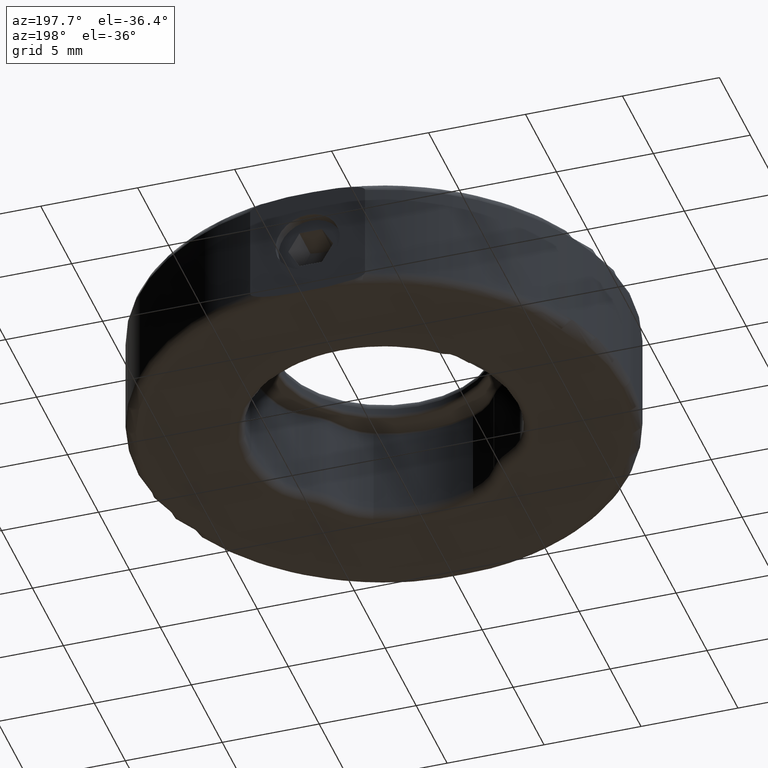
[diagram: clean part render]
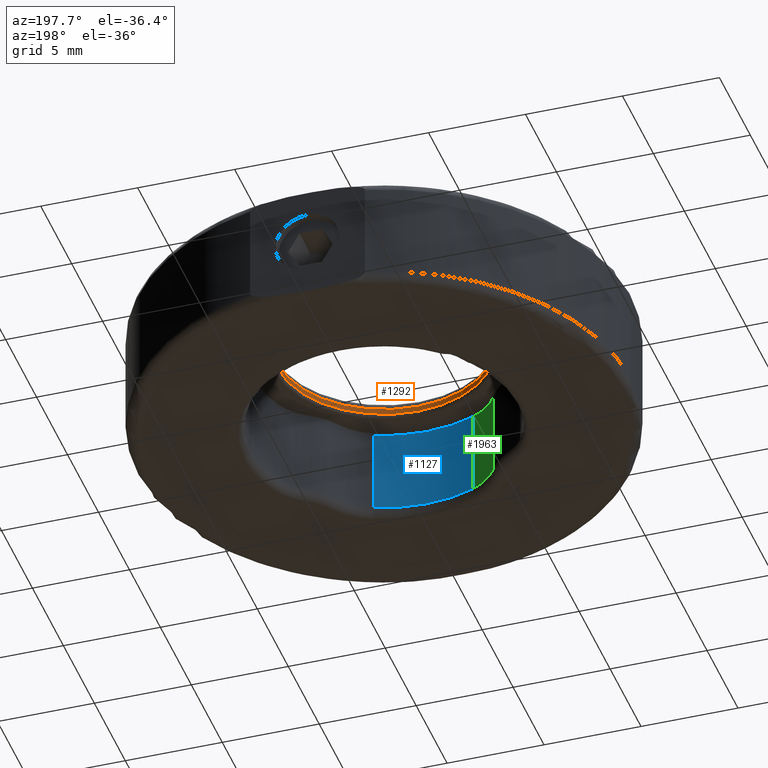
[diagram: same view with three faces highlighted in distinct colors, each labeled with its STEP entity id]
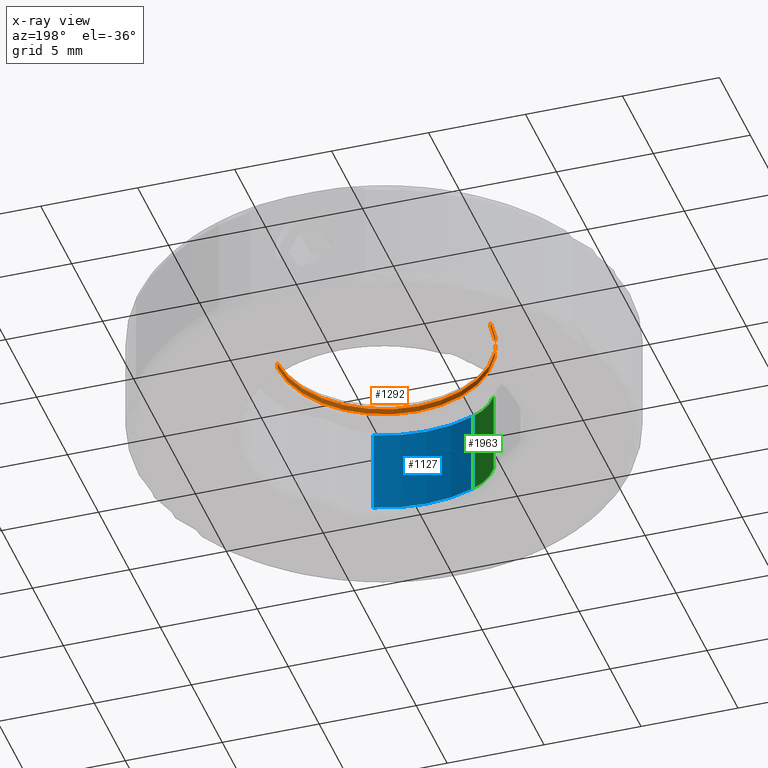
[diagram: x-ray of the same camera — body ghosted, the three highlighted faces saturated]
A machine part, auxiliary view with three faces highlighted in distinct colors.
The next image is the same camera in x-ray (body ghosted, the three faces saturated) — at least one of them is partly hidden behind the body in this view.
Their STEP definitions:

[orange] entity #1292 — the highlighted cylindrical surface (partial cylindrical patch) has radius 5.5 mm, axis along (-0, -0, -1).
#56 = ORIENTED_EDGE ( 'NONE', *, *, #1991, .T. ) ;
#67 = LINE ( 'NONE', #2198, #1425 ) ;
#168 = EDGE_CURVE ( 'NONE', #1728, #1677, #182, .T. ) ;
#182 = CIRCLE ( 'NONE', #799, 5.500000000000000000 ) ;
#232 = EDGE_CURVE ( 'NONE', #1728, #1734, #67, .T. ) ;
#272 = EDGE_CURVE ( 'NONE', #995, #1734, #2313, .T. ) ;
#286 = DIRECTION ( 'NONE',  ( -0.0000000000000000000, 0.0000000000000000000, 1.000000000000000000 ) ) ;
#338 = LINE ( 'NONE', #2300, #1823 ) ;
#382 = AXIS2_PLACEMENT_3D ( 'NONE', #517, #2360, #2207 ) ;
#479 = DIRECTION ( 'NONE',  ( 1.000000000000000000, 0.0000000000000000000, 0.0000000000000000000 ) ) ;
#504 = ORIENTED_EDGE ( 'NONE', *, *, #232, .F. ) ;
#517 = CARTESIAN_POINT ( 'NONE',  ( -0.1307823819386641500, 1.275128223901953000, 2.199999999999997500 ) ) ;
#582 = FACE_OUTER_BOUND ( 'NONE', #1949, .T. ) ;
#733 = CARTESIAN_POINT ( 'NONE',  ( -5.630782381938663800, 1.275128223901953000, 2.499999999999997300 ) ) ;
#799 = AXIS2_PLACEMENT_3D ( 'NONE', #1403, #286, #479 ) ;
#803 = AXIS2_PLACEMENT_3D ( 'NONE', #1112, #2225, #1122 ) ;
#861 = DIRECTION ( 'NONE',  ( -0.0000000000000000000, -0.0000000000000000000, -1.000000000000000000 ) ) ;
#917 = ORIENTED_EDGE ( 'NONE', *, *, #168, .T. ) ;
#995 = VERTEX_POINT ( 'NONE', #1210 ) ;
#1080 = DIRECTION ( 'NONE',  ( -0.0000000000000000000, -0.0000000000000000000, -1.000000000000000000 ) ) ;
#1112 = CARTESIAN_POINT ( 'NONE',  ( -0.1307823819386641500, 1.275128223901953000, 2.999999999999997800 ) ) ;
#1122 = DIRECTION ( 'NONE',  ( -1.000000000000000000, 0.0000000000000000000, 0.0000000000000000000 ) ) ;
#1157 = CYLINDRICAL_SURFACE ( 'NONE', #803, 5.500000000000000000 ) ;
#1210 = CARTESIAN_POINT ( 'NONE',  ( 5.369217618061335400, 1.275128223901953500, 2.199999999999997500 ) ) ;
#1292 = ADVANCED_FACE ( 'NONE', ( #582 ), #1157, .F. ) ;
#1403 = CARTESIAN_POINT ( 'NONE',  ( -0.1307823819386641500, 1.275128223901953000, 2.499999999999997300 ) ) ;
#1425 = VECTOR ( 'NONE', #1080, 1000.000000000000000 ) ;
#1677 = VERTEX_POINT ( 'NONE', #2193 ) ;
#1728 = VERTEX_POINT ( 'NONE', #733 ) ;
#1734 = VERTEX_POINT ( 'NONE', #2025 ) ;
#1823 = VECTOR ( 'NONE', #861, 1000.000000000000000 ) ;
#1949 = EDGE_LOOP ( 'NONE', ( #917, #56, #2093, #504 ) ) ;
#1991 = EDGE_CURVE ( 'NONE', #1677, #995, #338, .T. ) ;
#2025 = CARTESIAN_POINT ( 'NONE',  ( -5.630782381938663800, 1.275128223901953000, 2.199999999999997500 ) ) ;
#2093 = ORIENTED_EDGE ( 'NONE', *, *, #272, .T. ) ;
#2193 = CARTESIAN_POINT ( 'NONE',  ( 5.369217618061335400, 1.275128223901953500, 2.499999999999997300 ) ) ;
#2198 = CARTESIAN_POINT ( 'NONE',  ( -5.630782381938663800, 1.275128223901953000, 2.999999999999997800 ) ) ;
#2207 = DIRECTION ( 'NONE',  ( 1.000000000000000000, 0.0000000000000000000, 0.0000000000000000000 ) ) ;
#2225 = DIRECTION ( 'NONE',  ( -0.0000000000000000000, -0.0000000000000000000, -1.000000000000000000 ) ) ;
#2300 = CARTESIAN_POINT ( 'NONE',  ( 5.369217618061335400, 1.275128223901953500, 2.999999999999997800 ) ) ;
#2313 = CIRCLE ( 'NONE', #382, 5.500000000000000000 ) ;
#2360 = DIRECTION ( 'NONE',  ( 0.0000000000000000000, -0.0000000000000000000, -1.000000000000000000 ) ) ;

[blue] entity #1127 — the highlighted cylindrical surface (partial cylindrical patch) has radius 6.85 mm, axis along (0, 0, -1).
#2 = DIRECTION ( 'NONE',  ( 1.000000000000000000, 0.0000000000000000000, 0.0000000000000000000 ) ) ;
#169 = DIRECTION ( 'NONE',  ( 0.0000000000000000000, 0.0000000000000000000, -1.000000000000000000 ) ) ;
#205 = AXIS2_PLACEMENT_3D ( 'NONE', #567, #1104, #2 ) ;
#223 = EDGE_LOOP ( 'NONE', ( #816, #1960, #226, #1606 ) ) ;
#226 = ORIENTED_EDGE ( 'NONE', *, *, #830, .T. ) ;
#247 = VERTEX_POINT ( 'NONE', #1442 ) ;
#333 = EDGE_CURVE ( 'NONE', #979, #873, #2204, .T. ) ;
#493 = CARTESIAN_POINT ( 'NONE',  ( -2.690804347680618000, -5.078515418522343300, -2.500000000000002700 ) ) ;
#526 = CARTESIAN_POINT ( 'NONE',  ( -0.1307823819386641500, 1.275128223901953000, 1.999999999999997800 ) ) ;
#567 = CARTESIAN_POINT ( 'NONE',  ( -0.1307823819386641500, 1.275128223901953000, 1.899999999999997700 ) ) ;
#627 = DIRECTION ( 'NONE',  ( 0.0000000000000000000, 0.0000000000000000000, -1.000000000000000000 ) ) ;
#777 = AXIS2_PLACEMENT_3D ( 'NONE', #1740, #1586, #1023 ) ;
#816 = ORIENTED_EDGE ( 'NONE', *, *, #1944, .F. ) ;
#830 = EDGE_CURVE ( 'NONE', #873, #247, #2066, .T. ) ;
#837 = CYLINDRICAL_SURFACE ( 'NONE', #1161, 6.850000000000000500 ) ;
#873 = VERTEX_POINT ( 'NONE', #1712 ) ;
#892 = EDGE_CURVE ( 'NONE', #247, #998, #1303, .T. ) ;
#979 = VERTEX_POINT ( 'NONE', #2330 ) ;
#998 = VERTEX_POINT ( 'NONE', #493 ) ;
#1023 = DIRECTION ( 'NONE',  ( 1.000000000000000000, 0.0000000000000000000, 0.0000000000000000000 ) ) ;
#1042 = VECTOR ( 'NONE', #627, 1000.000000000000000 ) ;
#1104 = DIRECTION ( 'NONE',  ( -0.0000000000000000000, 0.0000000000000000000, 1.000000000000000000 ) ) ;
#1127 = ADVANCED_FACE ( 'NONE', ( #2230 ), #837, .F. ) ;
#1128 = LINE ( 'NONE', #1752, #1042 ) ;
#1154 = DIRECTION ( 'NONE',  ( 0.0000000000000000000, 0.0000000000000000000, -1.000000000000000000 ) ) ;
#1161 = AXIS2_PLACEMENT_3D ( 'NONE', #526, #169, #1464 ) ;
#1303 = CIRCLE ( 'NONE', #777, 6.850000000000000500 ) ;
#1442 = CARTESIAN_POINT ( 'NONE',  ( 2.429239583803291900, -5.078515418522344200, -2.500000000000002700 ) ) ;
#1464 = DIRECTION ( 'NONE',  ( -1.000000000000000000, 0.0000000000000000000, 0.0000000000000000000 ) ) ;
#1586 = DIRECTION ( 'NONE',  ( 0.0000000000000000000, -0.0000000000000000000, -1.000000000000000000 ) ) ;
#1606 = ORIENTED_EDGE ( 'NONE', *, *, #892, .T. ) ;
#1712 = CARTESIAN_POINT ( 'NONE',  ( 2.429239583803291900, -5.078515418522344200, 1.899999999999997700 ) ) ;
#1740 = CARTESIAN_POINT ( 'NONE',  ( -0.1307823819386641500, 1.275128223901953000, -2.500000000000002700 ) ) ;
#1752 = CARTESIAN_POINT ( 'NONE',  ( -2.690804347680618000, -5.078515418522343300, 1.999999999999997800 ) ) ;
#1885 = CARTESIAN_POINT ( 'NONE',  ( 2.429239583803291900, -5.078515418522344200, 1.999999999999997800 ) ) ;
#1943 = VECTOR ( 'NONE', #1154, 1000.000000000000000 ) ;
#1944 = EDGE_CURVE ( 'NONE', #979, #998, #1128, .T. ) ;
#1960 = ORIENTED_EDGE ( 'NONE', *, *, #333, .T. ) ;
#2066 = LINE ( 'NONE', #1885, #1943 ) ;
#2204 = CIRCLE ( 'NONE', #205, 6.850000000000000500 ) ;
#2230 = FACE_OUTER_BOUND ( 'NONE', #223, .T. ) ;
#2330 = CARTESIAN_POINT ( 'NONE',  ( -2.690804347680618000, -5.078515418522343300, 1.899999999999997700 ) ) ;

[green] entity #1963 — the highlighted cylindrical surface (partial cylindrical patch) has radius 3 mm, axis along (0, 0, -1).
#14 = ORIENTED_EDGE ( 'NONE', *, *, #2243, .T. ) ;
#45 = EDGE_LOOP ( 'NONE', ( #2176, #14, #1250, #1269 ) ) ;
#161 = AXIS2_PLACEMENT_3D ( 'NONE', #407, #423, #1466 ) ;
#262 = DIRECTION ( 'NONE',  ( -1.000000000000000000, 0.0000000000000000000, 0.0000000000000000000 ) ) ;
#308 = FACE_OUTER_BOUND ( 'NONE', #45, .T. ) ;
#342 = VECTOR ( 'NONE', #1700, 1000.000000000000000 ) ;
#372 = AXIS2_PLACEMENT_3D ( 'NONE', #602, #1539, #262 ) ;
#407 = CARTESIAN_POINT ( 'NONE',  ( -1.569626844435967100, -2.295897764905861800, 1.899999999999997700 ) ) ;
#423 = DIRECTION ( 'NONE',  ( -0.0000000000000000000, 0.0000000000000000000, 1.000000000000000000 ) ) ;
#493 = CARTESIAN_POINT ( 'NONE',  ( -2.690804347680618000, -5.078515418522343300, -2.500000000000002700 ) ) ;
#518 = CARTESIAN_POINT ( 'NONE',  ( -4.155928815234428700, -3.816108972549062500, -2.500000000000002700 ) ) ;
#602 = CARTESIAN_POINT ( 'NONE',  ( -1.569626844435967100, -2.295897764905861800, 1.999999999999997800 ) ) ;
#623 = CARTESIAN_POINT ( 'NONE',  ( -1.569626844435967100, -2.295897764905861800, -2.500000000000002700 ) ) ;
#627 = DIRECTION ( 'NONE',  ( 0.0000000000000000000, 0.0000000000000000000, -1.000000000000000000 ) ) ;
#811 = DIRECTION ( 'NONE',  ( 0.0000000000000000000, -0.0000000000000000000, -1.000000000000000000 ) ) ;
#944 = CARTESIAN_POINT ( 'NONE',  ( -4.155928815234428700, -3.816108972549062500, 1.899999999999997700 ) ) ;
#962 = CARTESIAN_POINT ( 'NONE',  ( -4.155928815234428700, -3.816108972549062500, 1.999999999999997800 ) ) ;
#979 = VERTEX_POINT ( 'NONE', #2330 ) ;
#998 = VERTEX_POINT ( 'NONE', #493 ) ;
#1027 = AXIS2_PLACEMENT_3D ( 'NONE', #623, #811, #1915 ) ;
#1042 = VECTOR ( 'NONE', #627, 1000.000000000000000 ) ;
#1128 = LINE ( 'NONE', #1752, #1042 ) ;
#1192 = VERTEX_POINT ( 'NONE', #518 ) ;
#1250 = ORIENTED_EDGE ( 'NONE', *, *, #1944, .T. ) ;
#1253 = EDGE_CURVE ( 'NONE', #1807, #1192, #1829, .T. ) ;
#1263 = CYLINDRICAL_SURFACE ( 'NONE', #372, 3.000000000000000400 ) ;
#1269 = ORIENTED_EDGE ( 'NONE', *, *, #2306, .T. ) ;
#1466 = DIRECTION ( 'NONE',  ( 1.000000000000000000, 0.0000000000000000000, 0.0000000000000000000 ) ) ;
#1539 = DIRECTION ( 'NONE',  ( 0.0000000000000000000, 0.0000000000000000000, -1.000000000000000000 ) ) ;
#1700 = DIRECTION ( 'NONE',  ( 0.0000000000000000000, 0.0000000000000000000, -1.000000000000000000 ) ) ;
#1752 = CARTESIAN_POINT ( 'NONE',  ( -2.690804347680618000, -5.078515418522343300, 1.999999999999997800 ) ) ;
#1807 = VERTEX_POINT ( 'NONE', #944 ) ;
#1829 = LINE ( 'NONE', #962, #342 ) ;
#1915 = DIRECTION ( 'NONE',  ( 1.000000000000000000, 8.673617379884034500E-016, 0.0000000000000000000 ) ) ;
#1931 = CIRCLE ( 'NONE', #1027, 3.000000000000000400 ) ;
#1944 = EDGE_CURVE ( 'NONE', #979, #998, #1128, .T. ) ;
#1963 = ADVANCED_FACE ( 'NONE', ( #308 ), #1263, .F. ) ;
#2056 = CIRCLE ( 'NONE', #161, 3.000000000000000400 ) ;
#2176 = ORIENTED_EDGE ( 'NONE', *, *, #1253, .F. ) ;
#2243 = EDGE_CURVE ( 'NONE', #1807, #979, #2056, .T. ) ;
#2306 = EDGE_CURVE ( 'NONE', #998, #1192, #1931, .T. ) ;
#2330 = CARTESIAN_POINT ( 'NONE',  ( -2.690804347680618000, -5.078515418522343300, 1.899999999999997700 ) ) ;